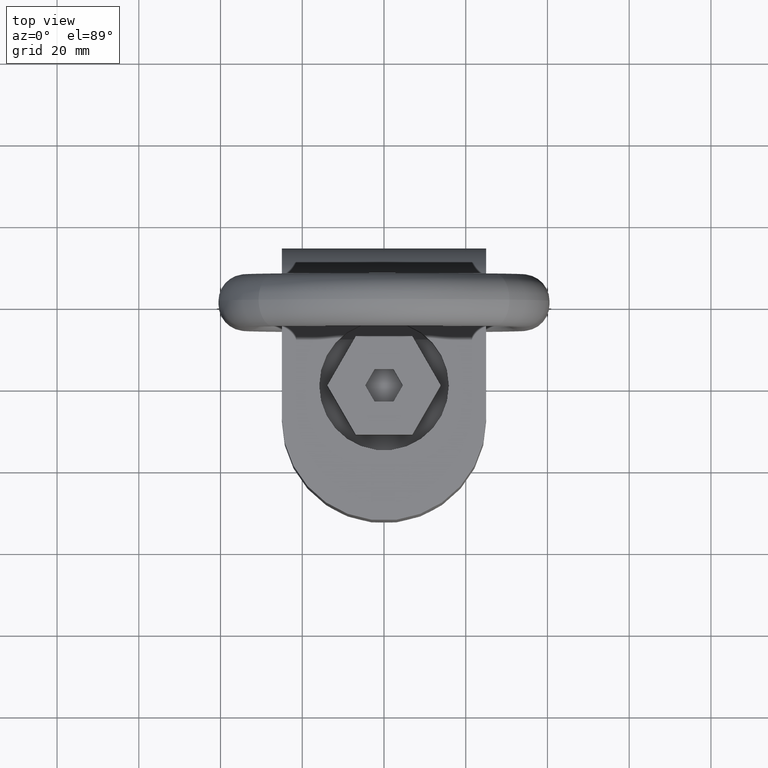
[diagram: clean part render]
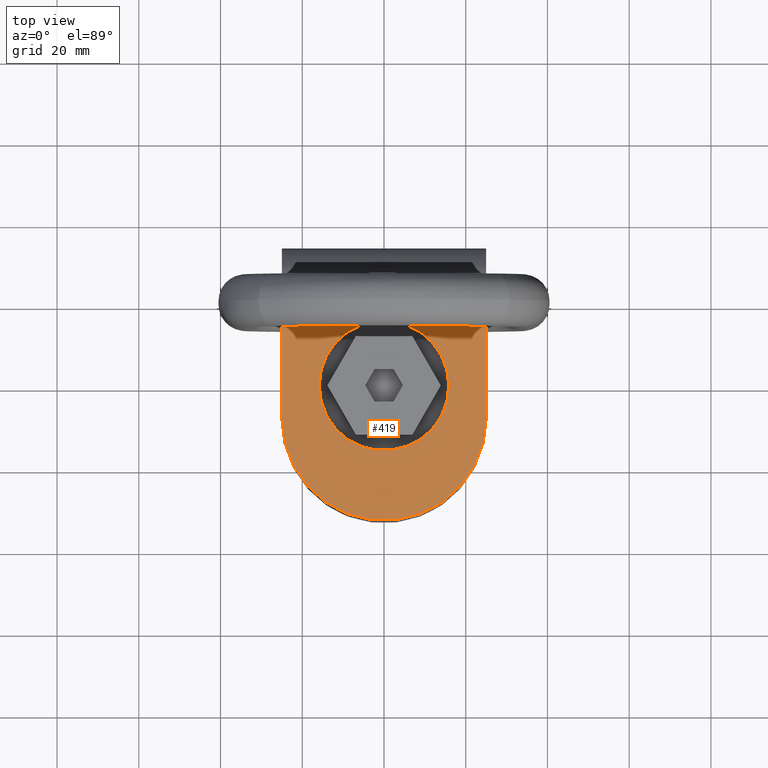
[diagram: same view with one face highlighted and labeled with its STEP entity id]
A machine part, top view. The second image highlights one B-rep face of the part: STEP entity #419.
In plain terms, the highlighted planar face has unit normal (0, 0, -1).
Its self-contained STEP definition (entity closure, byte-faithful):
#247=PLANE('',#2511);
#310=FACE_OUTER_BOUND('',#645,.T.);
#419=ADVANCED_FACE('',(#310),#247,.F.);
#645=EDGE_LOOP('',(#1232,#1233,#1234,#1235,#1236,#1237));
#807=LINE('',#3897,#938);
#809=LINE('',#3903,#940);
#810=LINE('',#3906,#941);
#811=LINE('',#3907,#942);
#938=VECTOR('',#2697,1.);
#940=VECTOR('',#2703,1.);
#941=VECTOR('',#2708,1.);
#942=VECTOR('',#2709,1.);
#1118=CIRCLE('',#2499,25.);
#1124=CIRCLE('',#2510,15.856406460551);
#1232=ORIENTED_EDGE('',*,*,#2069,.F.);
#1233=ORIENTED_EDGE('',*,*,#2068,.T.);
#1234=ORIENTED_EDGE('',*,*,#2070,.T.);
#1235=ORIENTED_EDGE('',*,*,#2050,.T.);
#1236=ORIENTED_EDGE('',*,*,#2071,.F.);
#1237=ORIENTED_EDGE('',*,*,#2064,.T.);
#1836=VERTEX_POINT('',#3750);
#1837=VERTEX_POINT('',#3752);
#1846=VERTEX_POINT('',#3895);
#1847=VERTEX_POINT('',#3896);
#1848=VERTEX_POINT('',#3898);
#1849=VERTEX_POINT('',#3902);
#2050=EDGE_CURVE('',#1837,#1836,#1118,.T.);
#2064=EDGE_CURVE('',#1848,#1846,#807,.T.);
#2068=EDGE_CURVE('',#1847,#1849,#809,.T.);
#2069=EDGE_CURVE('',#1847,#1846,#1124,.T.);
#2070=EDGE_CURVE('',#1849,#1837,#810,.T.);
#2071=EDGE_CURVE('',#1848,#1836,#811,.T.);
#2499=AXIS2_PLACEMENT_3D('',#3751,#2674,#2675);
#2510=AXIS2_PLACEMENT_3D('',#3905,#2706,#2707);
#2511=AXIS2_PLACEMENT_3D('',#3908,#2710,#2711);
#2674=DIRECTION('',(0.,0.,1.));
#2675=DIRECTION('',(-1.,0.,0.));
#2697=DIRECTION('',(-1.,0.,0.));
#2703=DIRECTION('',(-1.,0.,0.));
#2706=DIRECTION('',(0.,0.,1.));
#2707=DIRECTION('',(-1.,0.,0.));
#2708=DIRECTION('',(0.,-1.,0.));
#2709=DIRECTION('',(0.,-1.,0.));
#2710=DIRECTION('',(0.,0.,-1.));
#2711=DIRECTION('',(-1.,0.,0.));
#3750=CARTESIAN_POINT('',(25.,-8.00000000000001,36.5));
#3751=CARTESIAN_POINT('',(0.,-8.00000000000001,36.5));
#3752=CARTESIAN_POINT('',(-25.,-8.00000000000001,36.5));
#3895=CARTESIAN_POINT('',(1.8338827231327,15.75,36.5));
#3896=CARTESIAN_POINT('',(-1.8338827231327,15.75,36.5));
#3897=CARTESIAN_POINT('',(25.,15.75,36.5));
#3898=CARTESIAN_POINT('',(25.,15.75,36.5));
#3902=CARTESIAN_POINT('',(-25.,15.75,36.5));
#3903=CARTESIAN_POINT('',(25.,15.75,36.5));
#3905=CARTESIAN_POINT('',(0.,0.,36.5));
#3906=CARTESIAN_POINT('',(-25.,15.75,36.5));
#3907=CARTESIAN_POINT('',(25.,15.75,36.5));
#3908=CARTESIAN_POINT('',(25.,15.75,36.5));